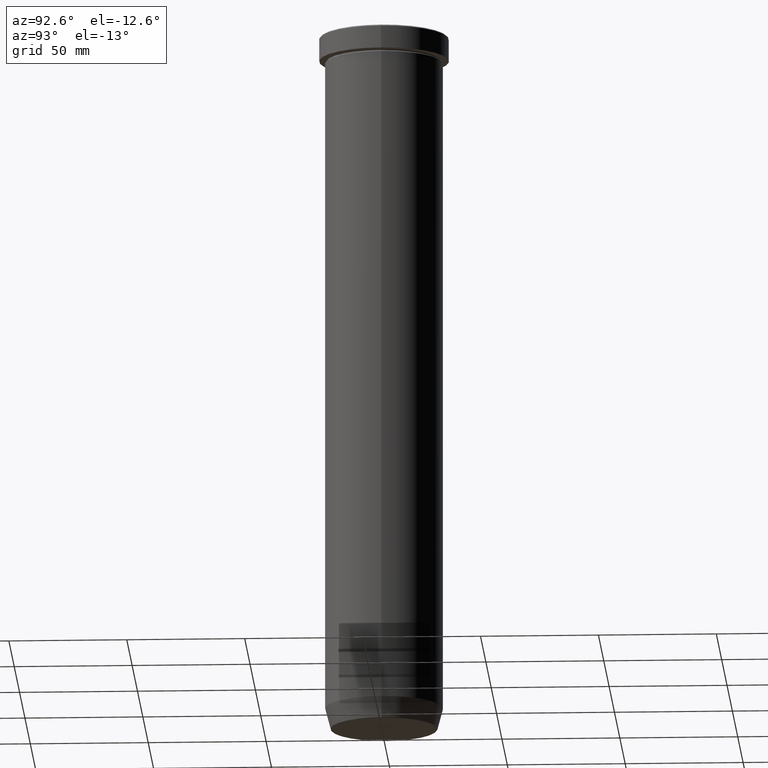
[diagram: clean part render]
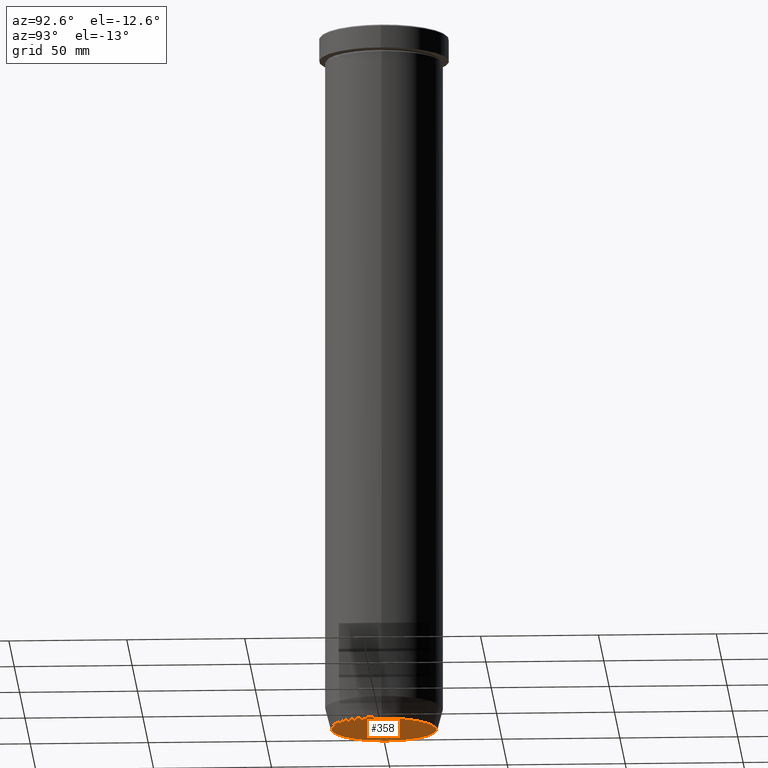
[diagram: same view with one face highlighted and labeled with its STEP entity id]
A machine part, auxiliary view. The second image highlights one B-rep face of the part: STEP entity #358.
In plain terms, the highlighted planar face has unit normal (0, -0, 1).
Its self-contained STEP definition (entity closure, byte-faithful):
#30 = CARTESIAN_POINT ( 'NONE',  ( 0.000000000000000000, 0.000000000000000000, -300.0000000000000000 ) ) ;
#45 = DIRECTION ( 'NONE',  ( 1.000000000000000000, 0.000000000000000000, 0.000000000000000000 ) ) ;
#47 = FACE_OUTER_BOUND ( 'NONE', #264, .T. ) ;
#53 = CARTESIAN_POINT ( 'NONE',  ( 0.000000000000000000, 3.061616997868383121E-14, -300.0000000000000000 ) ) ;
#66 = AXIS2_PLACEMENT_3D ( 'NONE', #560, #216, #581 ) ;
#99 = DIRECTION ( 'NONE',  ( 0.000000000000000000, -0.000000000000000000, 1.000000000000000000 ) ) ;
#149 = PLANE ( 'NONE',  #459 ) ;
#206 = CIRCLE ( 'NONE', #66, 22.20479377413040822 ) ;
#215 = ORIENTED_EDGE ( 'NONE', *, *, #388, .T. ) ;
#216 = DIRECTION ( 'NONE',  ( 0.000000000000000000, 0.000000000000000000, -1.000000000000000000 ) ) ;
#236 = CARTESIAN_POINT ( 'NONE',  ( -22.20479377413040822, 2.748875911406054788E-15, -300.0000000000000000 ) ) ;
#264 = EDGE_LOOP ( 'NONE', ( #215, #503 ) ) ;
#308 = DIRECTION ( 'NONE',  ( 1.000000000000000000, 0.000000000000000000, 0.000000000000000000 ) ) ;
#325 = EDGE_CURVE ( 'NONE', #548, #375, #505, .T. ) ;
#358 = ADVANCED_FACE ( 'NONE', ( #47 ), #149, .F. ) ;
#375 = VERTEX_POINT ( 'NONE', #383 ) ;
#383 = CARTESIAN_POINT ( 'NONE',  ( 22.20479377413040822, 0.000000000000000000, -300.0000000000000000 ) ) ;
#388 = EDGE_CURVE ( 'NONE', #375, #548, #206, .T. ) ;
#459 = AXIS2_PLACEMENT_3D ( 'NONE', #53, #99, #45 ) ;
#503 = ORIENTED_EDGE ( 'NONE', *, *, #325, .T. ) ;
#505 = CIRCLE ( 'NONE', #552, 22.20479377413040822 ) ;
#548 = VERTEX_POINT ( 'NONE', #236 ) ;
#552 = AXIS2_PLACEMENT_3D ( 'NONE', #30, #579, #308 ) ;
#560 = CARTESIAN_POINT ( 'NONE',  ( 0.000000000000000000, 0.000000000000000000, -300.0000000000000000 ) ) ;
#579 = DIRECTION ( 'NONE',  ( 0.000000000000000000, 0.000000000000000000, -1.000000000000000000 ) ) ;
#581 = DIRECTION ( 'NONE',  ( 1.000000000000000000, 0.000000000000000000, 0.000000000000000000 ) ) ;